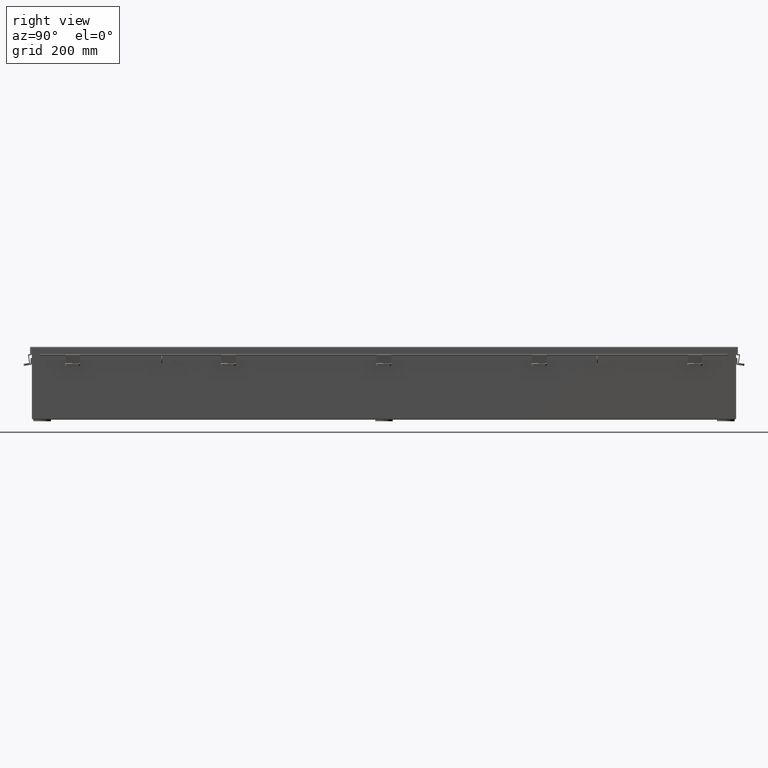
[diagram: clean part render]
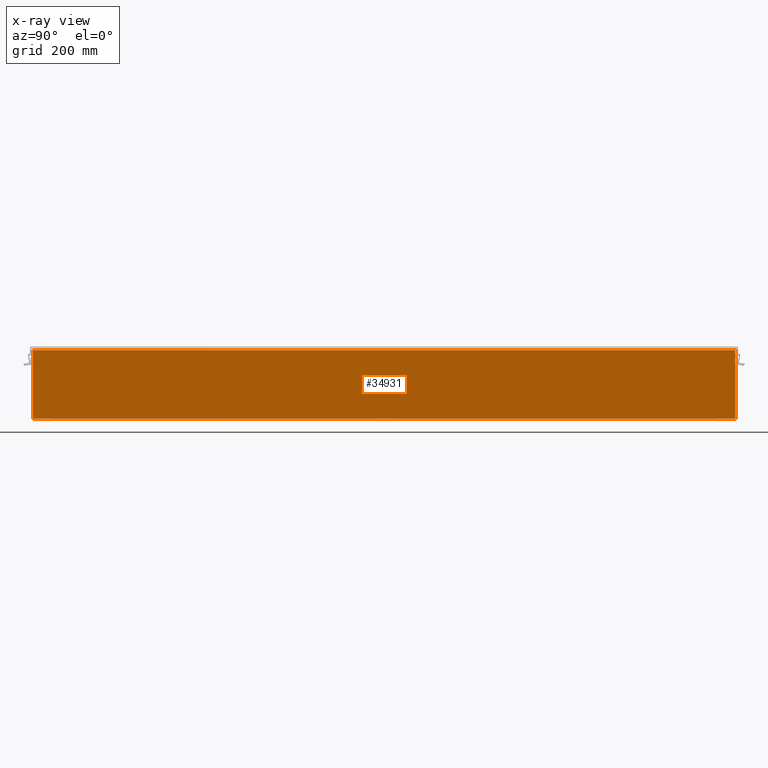
[diagram: x-ray — body ghosted, one internal face saturated and labeled with its STEP entity id]
A machine part, right view, then the same camera in x-ray: the body is ghosted and one INTERNAL B-rep face — a face not visible from any outside direction — is saturated and labeled: STEP entity #34931.
In plain terms, the highlighted planar face has unit normal (-1, 0, 0).
Its self-contained STEP definition (entity closure, byte-faithful):
#51 = DIRECTION ( 'NONE',  ( -0.0000000000000000000, -1.000000000000000000, -0.0000000000000000000 ) ) ;
#4880 = ORIENTED_EDGE ( 'NONE', *, *, #23797, .F. ) ;
#5376 = VERTEX_POINT ( 'NONE', #33177 ) ;
#5999 = EDGE_CURVE ( 'NONE', #17269, #12631, #14074, .T. ) ;
#6313 = VERTEX_POINT ( 'NONE', #32379 ) ;
#6348 = LINE ( 'NONE', #30704, #32067 ) ;
#9508 = VECTOR ( 'NONE', #17294, 39.37007874015748100 ) ;
#12588 = DIRECTION ( 'NONE',  ( 3.455316574900958600E-015, 0.0000000000000000000, 1.000000000000000000 ) ) ;
#12631 = VERTEX_POINT ( 'NONE', #25904 ) ;
#12643 = LINE ( 'NONE', #17444, #9508 ) ;
#14074 = LINE ( 'NONE', #20083, #24061 ) ;
#15133 = VECTOR ( 'NONE', #22737, 39.37007874015748100 ) ;
#16699 = ORIENTED_EDGE ( 'NONE', *, *, #22253, .F. ) ;
#16948 = EDGE_LOOP ( 'NONE', ( #34936, #18979, #16699, #4880 ) ) ;
#17269 = VERTEX_POINT ( 'NONE', #22057 ) ;
#17294 = DIRECTION ( 'NONE',  ( 3.455316574900959400E-015, -1.494190951308523000E-015, 1.000000000000000000 ) ) ;
#17444 = CARTESIAN_POINT ( 'NONE',  ( 2.925300000000024000, 29.92529999999998600, 5.850600000000000000 ) ) ;
#18979 = ORIENTED_EDGE ( 'NONE', *, *, #5999, .F. ) ;
#20083 = CARTESIAN_POINT ( 'NONE',  ( 2.925300000000023500, 29.92529999999997900, 5.837600000000000100 ) ) ;
#22057 = CARTESIAN_POINT ( 'NONE',  ( 2.925300000000024000, 29.92529999999998600, 5.837600000000000100 ) ) ;
#22253 = EDGE_CURVE ( 'NONE', #5376, #17269, #12643, .T. ) ;
#22551 = PLANE ( 'NONE',  #22722 ) ;
#22722 = AXIS2_PLACEMENT_3D ( 'NONE', #29331, #32694, #12588 ) ;
#22737 = DIRECTION ( 'NONE',  ( 1.261728323875524600E-031, 1.000000000000000000, 3.651556366905947300E-017 ) ) ;
#23797 = EDGE_CURVE ( 'NONE', #6313, #5376, #32983, .T. ) ;
#23944 = DIRECTION ( 'NONE',  ( -3.455316574900959400E-015, -0.0000000000000000000, -1.000000000000000000 ) ) ;
#24061 = VECTOR ( 'NONE', #51, 39.37007874015748100 ) ;
#25904 = CARTESIAN_POINT ( 'NONE',  ( 2.925300000000023500, -29.92530000000000400, 5.837600000000000100 ) ) ;
#29331 = CARTESIAN_POINT ( 'NONE',  ( 2.925300000000004000, 0.0000000000000000000, -1.036394832596379800E-014 ) ) ;
#30704 = CARTESIAN_POINT ( 'NONE',  ( 2.925300000000004000, -29.92530000000001100, 0.0000000000000000000 ) ) ;
#31905 = EDGE_CURVE ( 'NONE', #12631, #6313, #6348, .T. ) ;
#32067 = VECTOR ( 'NONE', #23944, 39.37007874015748100 ) ;
#32379 = CARTESIAN_POINT ( 'NONE',  ( 2.925300000000004000, -29.92530000000001100, 0.01300000000000120900 ) ) ;
#32694 = DIRECTION ( 'NONE',  ( -1.000000000000000000, 0.0000000000000000000, 3.455316574900958600E-015 ) ) ;
#32869 = CARTESIAN_POINT ( 'NONE',  ( 2.925300000000004000, -29.92530000000001100, 0.01300000000000011600 ) ) ;
#32910 = FACE_OUTER_BOUND ( 'NONE', #16948, .T. ) ;
#32983 = LINE ( 'NONE', #32869, #15133 ) ;
#33177 = CARTESIAN_POINT ( 'NONE',  ( 2.925300000000004000, 29.92529999999999300, 0.01300000000000120900 ) ) ;
#34931 = ADVANCED_FACE ( 'NONE', ( #32910 ), #22551, .T. ) ;
#34936 = ORIENTED_EDGE ( 'NONE', *, *, #31905, .F. ) ;